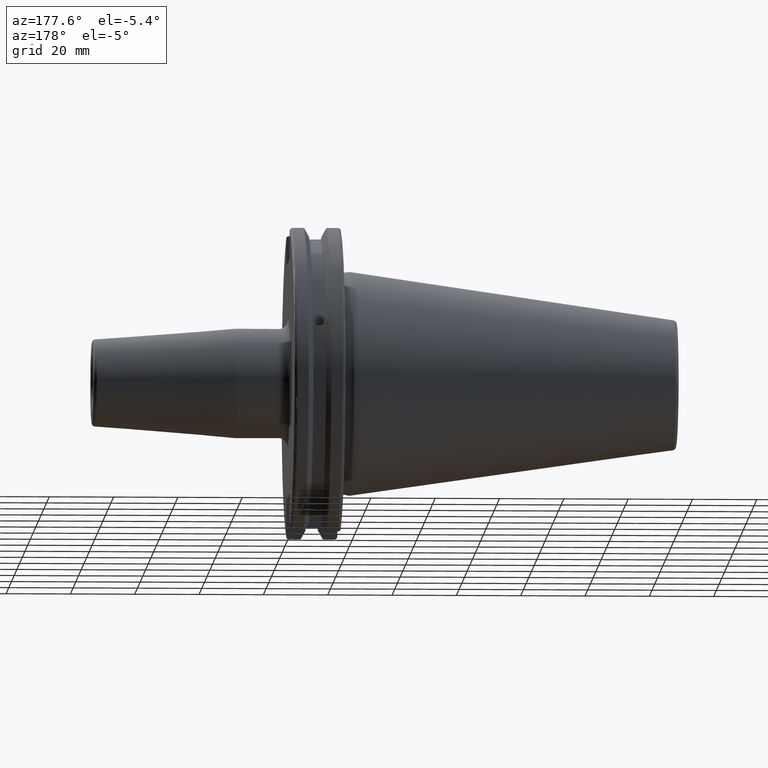
[diagram: clean part render]
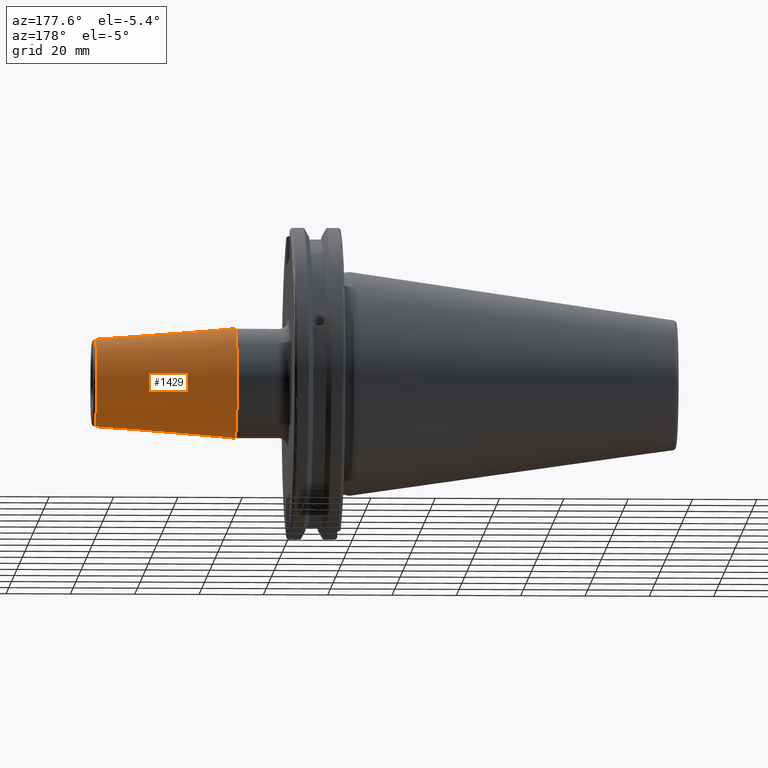
[diagram: same view with one face highlighted and labeled with its STEP entity id]
A machine part, auxiliary view. The second image highlights one B-rep face of the part: STEP entity #1429.
In plain terms, the highlighted conical surface has half-angle 4.5 deg.
Its self-contained STEP definition (entity closure, byte-faithful):
#71=CONICAL_SURFACE('',#1545,15.25,0.0785398163397444);
#84=LINE('',#2128,#174);
#174=VECTOR('',#1723,15.25);
#350=FACE_OUTER_BOUND('',#435,.T.);
#435=EDGE_LOOP('',(#993,#994,#995,#996,#997));
#541=CIRCLE('',#1543,13.5725268420749);
#542=CIRCLE('',#1544,13.5725268420749);
#543=CIRCLE('',#1546,17.);
#613=VERTEX_POINT('',#2121);
#614=VERTEX_POINT('',#2123);
#615=VERTEX_POINT('',#2127);
#764=EDGE_CURVE('',#613,#614,#541,.T.);
#765=EDGE_CURVE('',#614,#613,#542,.T.);
#766=EDGE_CURVE('',#614,#615,#84,.T.);
#767=EDGE_CURVE('',#615,#615,#543,.T.);
#993=ORIENTED_EDGE('',*,*,#765,.F.);
#994=ORIENTED_EDGE('',*,*,#766,.T.);
#995=ORIENTED_EDGE('',*,*,#767,.T.);
#996=ORIENTED_EDGE('',*,*,#766,.F.);
#997=ORIENTED_EDGE('',*,*,#764,.F.);
#1429=ADVANCED_FACE('',(#350),#71,.T.);
#1543=AXIS2_PLACEMENT_3D('',#2124,#1717,#1718);
#1544=AXIS2_PLACEMENT_3D('',#2125,#1719,#1720);
#1545=AXIS2_PLACEMENT_3D('',#2126,#1721,#1722);
#1546=AXIS2_PLACEMENT_3D('',#2129,#1724,#1725);
#1717=DIRECTION('center_axis',(1.,0.,0.));
#1718=DIRECTION('ref_axis',(0.,-1.,3.06161699786838E-17));
#1719=DIRECTION('center_axis',(1.,0.,0.));
#1720=DIRECTION('ref_axis',(0.,-1.,3.06161699786838E-17));
#1721=DIRECTION('center_axis',(-1.,0.,0.));
#1722=DIRECTION('ref_axis',(0.,1.,0.));
#1723=DIRECTION('',(-0.996917333733128,-0.0784590957278445,-9.60846804471006E-18));
#1724=DIRECTION('center_axis',(1.,0.,0.));
#1725=DIRECTION('ref_axis',(0.,0.,-1.));
#2121=CARTESIAN_POINT('',(79.0784590957279,-1.66215515534886E-15,13.5725268420749));
#2123=CARTESIAN_POINT('',(79.0784590957279,-13.5725268420749,-1.66215515534886E-15));
#2124=CARTESIAN_POINT('Origin',(79.0784590957279,0.,-2.07769394418607E-15));
#2125=CARTESIAN_POINT('Origin',(79.0784590957279,0.,-2.07769394418607E-15));
#2126=CARTESIAN_POINT('Origin',(57.7641417116941,0.,0.));
#2127=CARTESIAN_POINT('',(35.5282834233883,-17.,-2.0818995585505E-15));
#2128=CARTESIAN_POINT('',(57.7641417116941,-15.25,-1.86758636869971E-15));
#2129=CARTESIAN_POINT('Origin',(35.5282834233883,0.,0.));